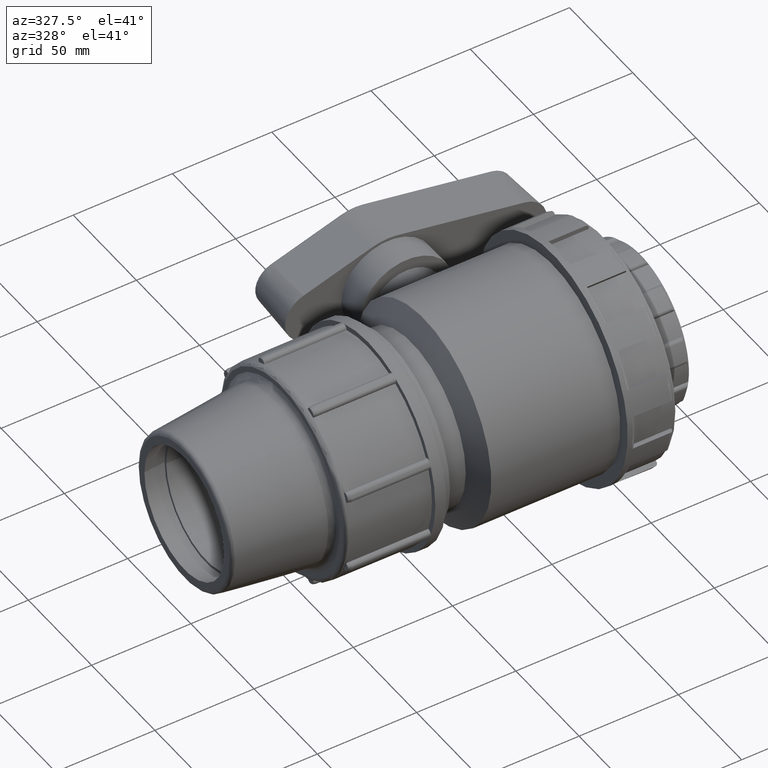
[diagram: clean part render]
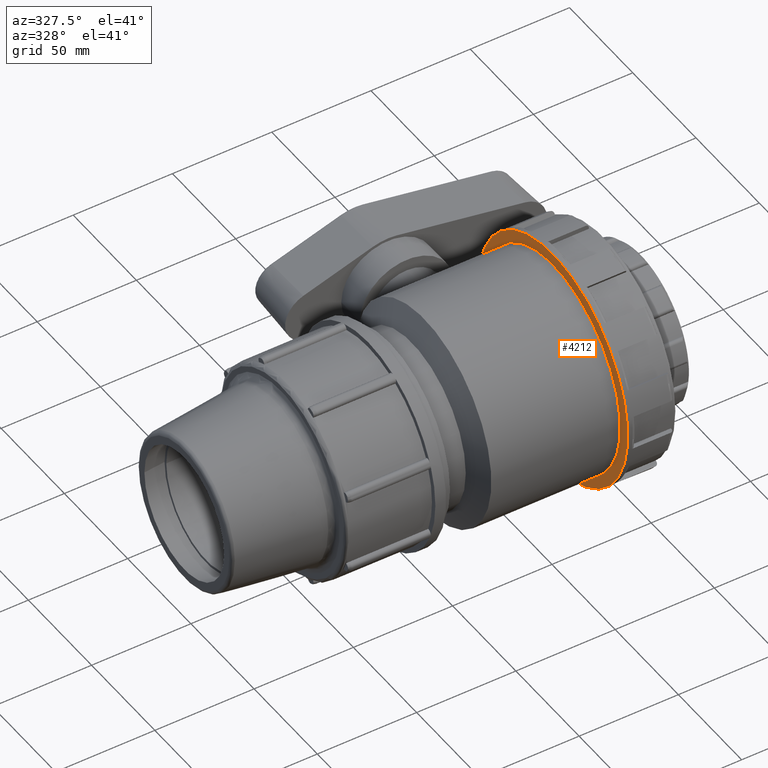
[diagram: same view with one face highlighted and labeled with its STEP entity id]
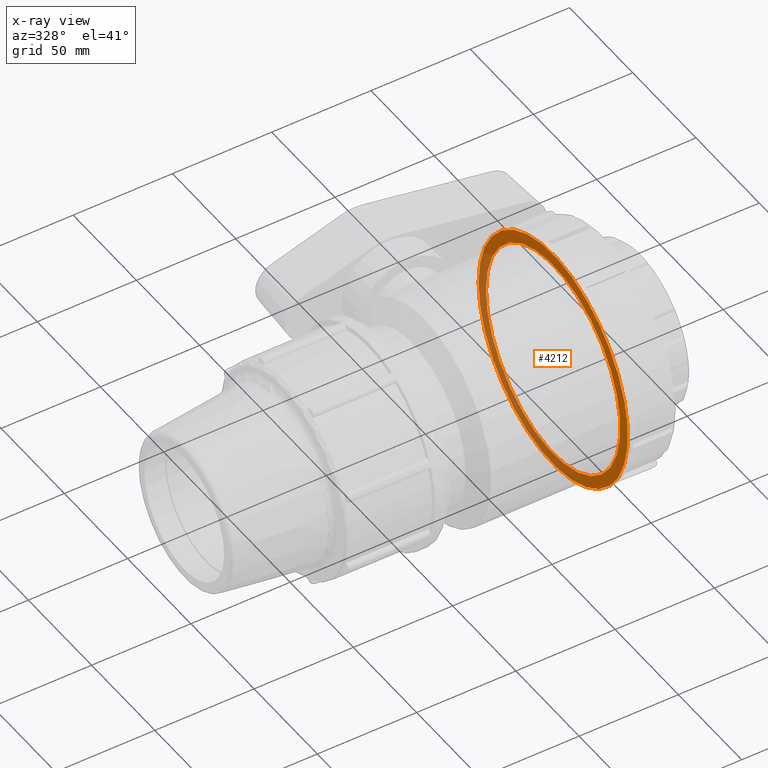
[diagram: x-ray of the same camera — body ghosted, the highlighted face saturated]
A machine part, auxiliary view. The second image highlights one B-rep face of the part: STEP entity #4212.
The next image is the same camera in x-ray: the body ghosted, the highlighted face saturated — about 38% of this face is hidden behind the body in this view.
In plain terms, the highlighted planar face has unit normal (-1, 0, 0).
Its self-contained STEP definition (entity closure, byte-faithful):
#55=FACE_BOUND('',#862,.T.);
#203=PLANE('',#4702);
#592=FACE_OUTER_BOUND('',#861,.T.);
#861=EDGE_LOOP('',(#3877));
#862=EDGE_LOOP('',(#3878));
#1592=CIRCLE('',#4688,59.);
#1598=CIRCLE('',#4703,53.1);
#2003=VERTEX_POINT('',#8618);
#2011=VERTEX_POINT('',#8665);
#2626=EDGE_CURVE('',#2003,#2003,#1592,.T.);
#2638=EDGE_CURVE('',#2011,#2011,#1598,.T.);
#3877=ORIENTED_EDGE('',*,*,#2626,.T.);
#3878=ORIENTED_EDGE('',*,*,#2638,.F.);
#4212=ADVANCED_FACE('',(#592,#55),#203,.T.);
#4688=AXIS2_PLACEMENT_3D('',#8619,#5874,#5875);
#4702=AXIS2_PLACEMENT_3D('',#8664,#5906,#5907);
#4703=AXIS2_PLACEMENT_3D('',#8666,#5908,#5909);
#5874=DIRECTION('center_axis',(-1.,0.,0.));
#5875=DIRECTION('ref_axis',(0.,0.,1.));
#5906=DIRECTION('center_axis',(-1.,0.,0.));
#5907=DIRECTION('ref_axis',(0.,0.,1.));
#5908=DIRECTION('center_axis',(-1.,0.,0.));
#5909=DIRECTION('ref_axis',(0.,0.,1.));
#8618=CARTESIAN_POINT('',(32.4666666666666,59.,0.));
#8619=CARTESIAN_POINT('Origin',(32.4666666666666,0.,0.));
#8664=CARTESIAN_POINT('Origin',(32.4666666666666,53.1,0.));
#8665=CARTESIAN_POINT('',(32.4666666666666,53.1,0.));
#8666=CARTESIAN_POINT('Origin',(32.4666666666666,0.,0.));